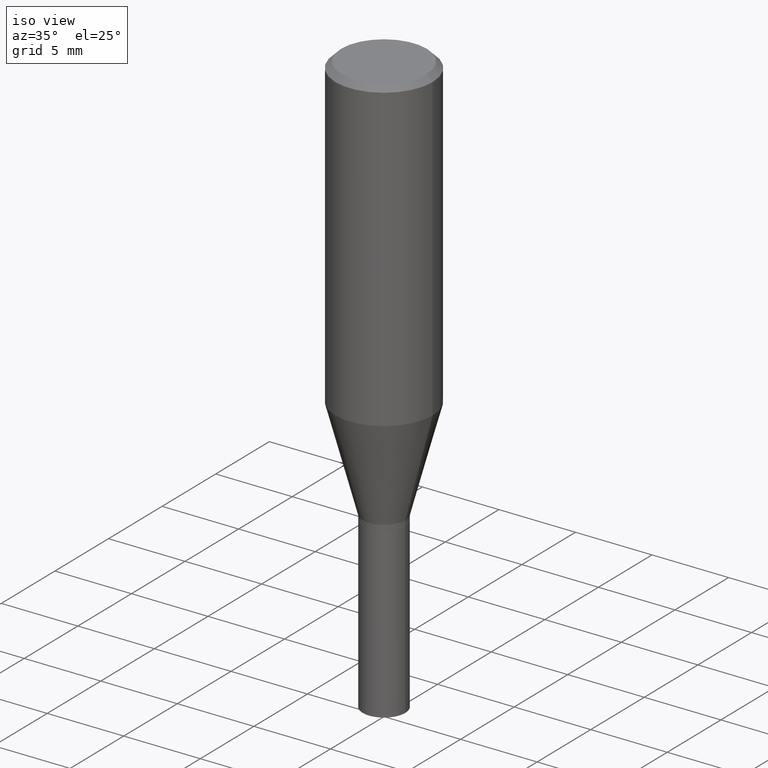
[diagram: clean part render]
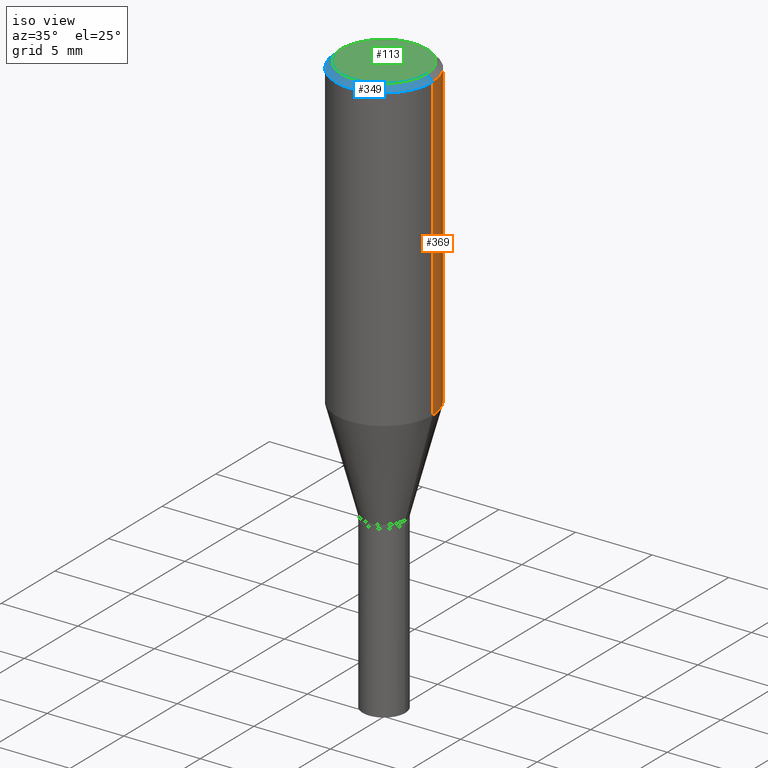
[diagram: same view with three faces highlighted in distinct colors, each labeled with its STEP entity id]
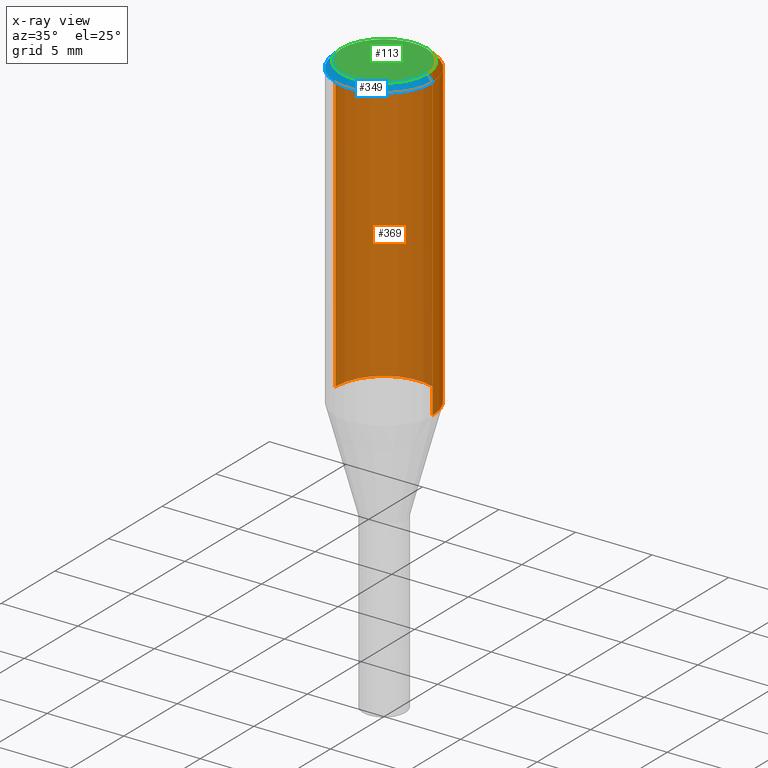
[diagram: x-ray of the same camera — body ghosted, the three highlighted faces saturated]
A machine part, iso view with three faces highlighted in distinct colors.
The next image is the same camera in x-ray (body ghosted, the three faces saturated) — at least one of them is partly hidden behind the body in this view.
Their STEP definitions:

[orange] entity #369 — the highlighted cylindrical surface (partial cylindrical patch) has radius 3.175 mm, axis along (-0, 0, 1).
#22 = ORIENTED_EDGE ( 'NONE', *, *, #269, .F. ) ;
#29 = CARTESIAN_POINT ( 'NONE',  ( -0.1250000000000000000, -1.868823830520909276E-15, -0.7896368282279090378 ) ) ;
#41 = DIRECTION ( 'NONE',  ( 1.000000000000000000, -6.982962677686266711E-15, 0.000000000000000000 ) ) ;
#43 = VERTEX_POINT ( 'NONE', #92 ) ;
#48 = DIRECTION ( 'NONE',  ( -2.445468806185136877E-29, 3.491481338843145188E-15, 1.000000000000000000 ) ) ;
#63 = CARTESIAN_POINT ( 'NONE',  ( 3.668203209277705088E-31, -5.237222008264718399E-17, -0.01499999999999999944 ) ) ;
#69 = VECTOR ( 'NONE', #48, 39.37007874015748143 ) ;
#77 = DIRECTION ( 'NONE',  ( 1.000000000000000000, -6.982962677686266711E-15, 4.876176775795935793E-29 ) ) ;
#92 = CARTESIAN_POINT ( 'NONE',  ( 0.1250000000000000000, -3.629872584931818241E-15, -0.7896368282279090378 ) ) ;
#103 = CARTESIAN_POINT ( 'NONE',  ( 0.1250000000000000000, -9.252425547934304180E-16, -0.01499999999999999944 ) ) ;
#110 = LINE ( 'NONE', #187, #69 ) ;
#124 = CIRCLE ( 'NONE', #382, 0.1250000000000000000 ) ;
#145 = CARTESIAN_POINT ( 'NONE',  ( 1.931032231646322477E-29, -2.757002250221034902E-15, -0.7896368282279090378 ) ) ;
#146 = VERTEX_POINT ( 'NONE', #171 ) ;
#152 = DIRECTION ( 'NONE',  ( -2.445468806185136597E-29, 3.491481338843145583E-15, 1.000000000000000000 ) ) ;
#171 = CARTESIAN_POINT ( 'NONE',  ( -0.1250000000000000000, -5.165088154517157584E-16, -0.01499999999999999944 ) ) ;
#187 = CARTESIAN_POINT ( 'NONE',  ( -0.1250000000000000000, 8.881784197001252323E-16, -6.148668862818632227E-30 ) ) ;
#188 = VERTEX_POINT ( 'NONE', #29 ) ;
#196 = ORIENTED_EDGE ( 'NONE', *, *, #212, .F. ) ;
#212 = EDGE_CURVE ( 'NONE', #259, #146, #124, .T. ) ;
#214 = CIRCLE ( 'NONE', #222, 0.1250000000000000000 ) ;
#222 = AXIS2_PLACEMENT_3D ( 'NONE', #145, #319, #41 ) ;
#259 = VERTEX_POINT ( 'NONE', #103 ) ;
#268 = ORIENTED_EDGE ( 'NONE', *, *, #341, .T. ) ;
#269 = EDGE_CURVE ( 'NONE', #43, #259, #284, .T. ) ;
#277 = AXIS2_PLACEMENT_3D ( 'NONE', #354, #152, #77 ) ;
#284 = LINE ( 'NONE', #324, #418 ) ;
#294 = ORIENTED_EDGE ( 'NONE', *, *, #300, .T. ) ;
#300 = EDGE_CURVE ( 'NONE', #188, #146, #110, .T. ) ;
#304 = DIRECTION ( 'NONE',  ( -2.445468806185136597E-29, 3.491481338843145583E-15, 1.000000000000000000 ) ) ;
#312 = CYLINDRICAL_SURFACE ( 'NONE', #277, 0.1250000000000000000 ) ;
#319 = DIRECTION ( 'NONE',  ( -2.445468806185136597E-29, 3.491481338843145583E-15, 1.000000000000000000 ) ) ;
#324 = CARTESIAN_POINT ( 'NONE',  ( 0.1250000000000000000, -8.728703347107833388E-16, 6.095220969744919741E-30 ) ) ;
#341 = EDGE_CURVE ( 'NONE', #43, #188, #214, .T. ) ;
#354 = CARTESIAN_POINT ( 'NONE',  ( 0.000000000000000000, 0.000000000000000000, 0.000000000000000000 ) ) ;
#366 = DIRECTION ( 'NONE',  ( -2.445468806185136877E-29, 3.491481338843145188E-15, 1.000000000000000000 ) ) ;
#369 = ADVANCED_FACE ( 'NONE', ( #393 ), #312, .T. ) ;
#382 = AXIS2_PLACEMENT_3D ( 'NONE', #63, #304, #383 ) ;
#383 = DIRECTION ( 'NONE',  ( 1.000000000000000000, -6.982962677686266711E-15, 0.000000000000000000 ) ) ;
#393 = FACE_OUTER_BOUND ( 'NONE', #407, .T. ) ;
#407 = EDGE_LOOP ( 'NONE', ( #268, #294, #196, #22 ) ) ;
#418 = VECTOR ( 'NONE', #366, 39.37007874015748143 ) ;

[blue] entity #349 — the highlighted conical surface has half-angle 45 deg.
#3 = AXIS2_PLACEMENT_3D ( 'NONE', #390, #184, #397 ) ;
#13 = AXIS2_PLACEMENT_3D ( 'NONE', #239, #278, #425 ) ;
#14 = CONICAL_SURFACE ( 'NONE', #3, 0.1250000000000000000, 0.7853981633974553844 ) ;
#27 = AXIS2_PLACEMENT_3D ( 'NONE', #211, #460, #379 ) ;
#57 = EDGE_LOOP ( 'NONE', ( #166, #111, #394, #96 ) ) ;
#67 = LINE ( 'NONE', #172, #131 ) ;
#95 = EDGE_CURVE ( 'NONE', #378, #146, #387, .T. ) ;
#96 = ORIENTED_EDGE ( 'NONE', *, *, #155, .T. ) ;
#103 = CARTESIAN_POINT ( 'NONE',  ( 0.1250000000000000000, -9.252425547934304180E-16, -0.01499999999999999944 ) ) ;
#111 = ORIENTED_EDGE ( 'NONE', *, *, #149, .F. ) ;
#117 = CIRCLE ( 'NONE', #13, 0.1100000000000000006 ) ;
#131 = VECTOR ( 'NONE', #327, 39.37007874015748854 ) ;
#146 = VERTEX_POINT ( 'NONE', #171 ) ;
#149 = EDGE_CURVE ( 'NONE', #378, #167, #117, .T. ) ;
#155 = EDGE_CURVE ( 'NONE', #146, #259, #190, .T. ) ;
#166 = ORIENTED_EDGE ( 'NONE', *, *, #266, .F. ) ;
#167 = VERTEX_POINT ( 'NONE', #279 ) ;
#170 = DIRECTION ( 'NONE',  ( -0.7071067811865524577, 2.468850131082309125E-15, -0.7071067811865424657 ) ) ;
#171 = CARTESIAN_POINT ( 'NONE',  ( -0.1250000000000000000, -5.165088154517157584E-16, -0.01499999999999999944 ) ) ;
#172 = CARTESIAN_POINT ( 'NONE',  ( 0.1250000000000000000, -9.099344698040885245E-16, -0.01499999999999999944 ) ) ;
#184 = DIRECTION ( 'NONE',  ( 2.445468806185136597E-29, -3.491481338843145583E-15, -1.000000000000000000 ) ) ;
#190 = CIRCLE ( 'NONE', #27, 0.1250000000000000000 ) ;
#211 = CARTESIAN_POINT ( 'NONE',  ( 3.668203209277705088E-31, -5.237222008264718399E-17, -0.01499999999999999944 ) ) ;
#219 = CARTESIAN_POINT ( 'NONE',  ( -0.1100000000000000006, 7.943120045868123256E-16, -2.196503395834883125E-16 ) ) ;
#239 = CARTESIAN_POINT ( 'NONE',  ( 5.371480537193796611E-45, -7.669050617262902492E-31, -2.196503395834828644E-16 ) ) ;
#247 = FACE_OUTER_BOUND ( 'NONE', #57, .T. ) ;
#259 = VERTEX_POINT ( 'NONE', #103 ) ;
#266 = EDGE_CURVE ( 'NONE', #167, #259, #67, .T. ) ;
#278 = DIRECTION ( 'NONE',  ( -2.445468806185136597E-29, 3.491481338843145583E-15, 1.000000000000000000 ) ) ;
#279 = CARTESIAN_POINT ( 'NONE',  ( 0.1100000000000000006, -8.322946247794788808E-16, -2.196503395834772438E-16 ) ) ;
#327 = DIRECTION ( 'NONE',  ( 0.7071067811865524577, -7.319954787623271823E-15, -0.7071067811865424657 ) ) ;
#347 = CARTESIAN_POINT ( 'NONE',  ( -0.1250000000000000000, 8.204981146281362596E-16, -0.01499999999999999944 ) ) ;
#349 = ADVANCED_FACE ( 'NONE', ( #247 ), #14, .T. ) ;
#378 = VERTEX_POINT ( 'NONE', #219 ) ;
#379 = DIRECTION ( 'NONE',  ( 1.000000000000000000, -6.982962677686266711E-15, 0.000000000000000000 ) ) ;
#387 = LINE ( 'NONE', #347, #388 ) ;
#388 = VECTOR ( 'NONE', #170, 39.37007874015748854 ) ;
#390 = CARTESIAN_POINT ( 'NONE',  ( 3.668203209277705088E-31, -5.237222008264718399E-17, -0.01499999999999999944 ) ) ;
#394 = ORIENTED_EDGE ( 'NONE', *, *, #95, .T. ) ;
#397 = DIRECTION ( 'NONE',  ( -1.000000000000000000, 6.982962677686266711E-15, 0.000000000000000000 ) ) ;
#425 = DIRECTION ( 'NONE',  ( 1.000000000000000000, -6.982962677686266711E-15, 4.880309236314112093E-29 ) ) ;
#460 = DIRECTION ( 'NONE',  ( -2.445468806185136597E-29, 3.491481338843145583E-15, 1.000000000000000000 ) ) ;

[green] entity #113 — the highlighted planar face has unit normal (0, -0, -1).
#13 = AXIS2_PLACEMENT_3D ( 'NONE', #239, #278, #425 ) ;
#19 = EDGE_LOOP ( 'NONE', ( #419, #158 ) ) ;
#31 = FACE_OUTER_BOUND ( 'NONE', #19, .T. ) ;
#59 = AXIS2_PLACEMENT_3D ( 'NONE', #461, #457, #421 ) ;
#68 = PLANE ( 'NONE',  #59 ) ;
#113 = ADVANCED_FACE ( 'NONE', ( #31 ), #68, .F. ) ;
#117 = CIRCLE ( 'NONE', #13, 0.1100000000000000006 ) ;
#149 = EDGE_CURVE ( 'NONE', #378, #167, #117, .T. ) ;
#158 = ORIENTED_EDGE ( 'NONE', *, *, #426, .T. ) ;
#167 = VERTEX_POINT ( 'NONE', #279 ) ;
#192 = DIRECTION ( 'NONE',  ( -2.445468806185136597E-29, 3.491481338843145583E-15, 1.000000000000000000 ) ) ;
#200 = CIRCLE ( 'NONE', #459, 0.1100000000000000006 ) ;
#219 = CARTESIAN_POINT ( 'NONE',  ( -0.1100000000000000006, 7.943120045868123256E-16, -2.196503395834883125E-16 ) ) ;
#232 = DIRECTION ( 'NONE',  ( 1.000000000000000000, -6.982962677686266711E-15, 4.880309236314112093E-29 ) ) ;
#239 = CARTESIAN_POINT ( 'NONE',  ( 5.371480537193796611E-45, -7.669050617262902492E-31, -2.196503395834828644E-16 ) ) ;
#264 = CARTESIAN_POINT ( 'NONE',  ( 5.371480537193796611E-45, -7.669050617262902492E-31, -2.196503395834828644E-16 ) ) ;
#278 = DIRECTION ( 'NONE',  ( -2.445468806185136597E-29, 3.491481338843145583E-15, 1.000000000000000000 ) ) ;
#279 = CARTESIAN_POINT ( 'NONE',  ( 0.1100000000000000006, -8.322946247794788808E-16, -2.196503395834772438E-16 ) ) ;
#378 = VERTEX_POINT ( 'NONE', #219 ) ;
#419 = ORIENTED_EDGE ( 'NONE', *, *, #149, .T. ) ;
#421 = DIRECTION ( 'NONE',  ( -1.000000000000000000, 6.982962677686265922E-15, -4.876176775795935793E-29 ) ) ;
#425 = DIRECTION ( 'NONE',  ( 1.000000000000000000, -6.982962677686266711E-15, 4.880309236314112093E-29 ) ) ;
#426 = EDGE_CURVE ( 'NONE', #167, #378, #200, .T. ) ;
#457 = DIRECTION ( 'NONE',  ( 2.438088387897960049E-29, -3.491481338843145188E-15, -1.000000000000000000 ) ) ;
#459 = AXIS2_PLACEMENT_3D ( 'NONE', #264, #192, #232 ) ;
#461 = CARTESIAN_POINT ( 'NONE',  ( 7.681258945454893776E-16, 0.1100000000000000006, -4.938881170644875139E-16 ) ) ;